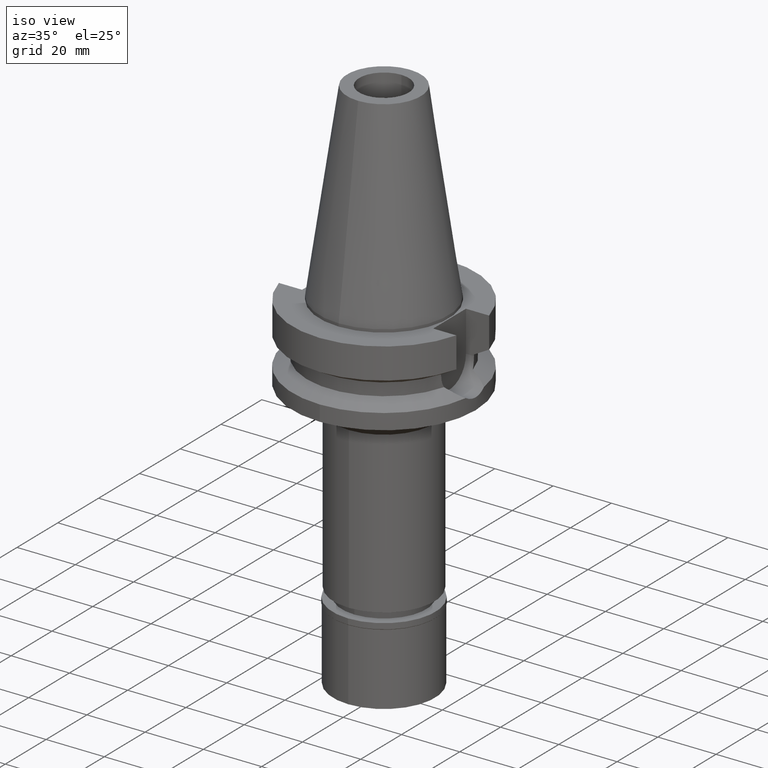
[diagram: clean part render]
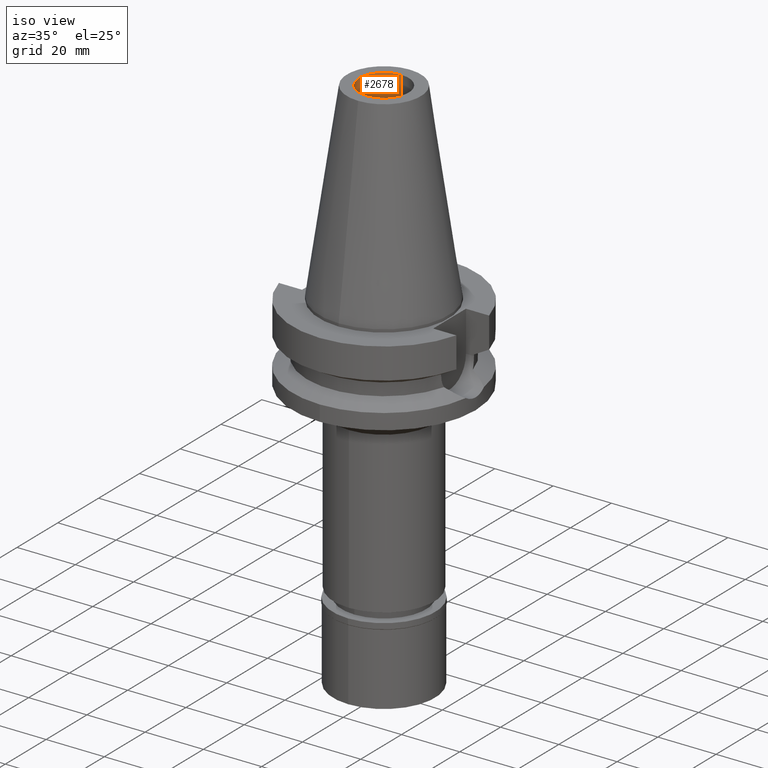
[diagram: same view with one face highlighted and labeled with its STEP entity id]
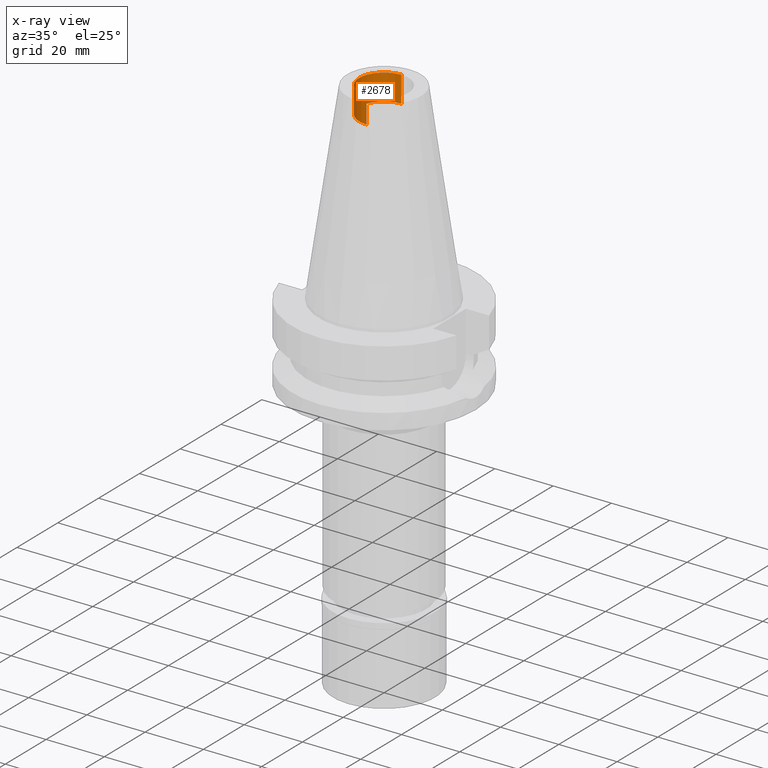
[diagram: x-ray of the same camera — body ghosted, the highlighted face saturated]
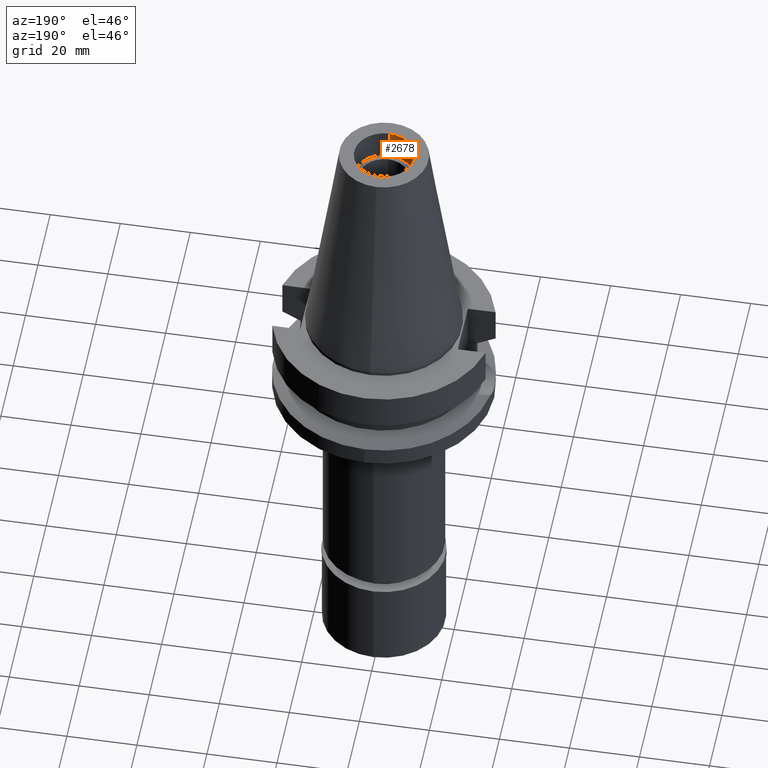
[diagram: same view with one face highlighted and labeled with its STEP entity id]
A machine part, iso view. The second image highlights one B-rep face of the part: STEP entity #2678.
The next image is the same camera in x-ray: the body ghosted, the highlighted face saturated — about 0% of this face is hidden behind the body in this view.
A second angle (auxiliary view) of the same face is appended — the face is thin or edge-on in the first view.
In plain terms, the highlighted cylindrical surface (edge-blend (fillet) strip) has radius 8.5 mm, axis along (0, 0, -1).
Its self-contained STEP definition (entity closure, byte-faithful):
#13 = LINE ( 'NONE', #48, #1391 ) ;
#41 = CARTESIAN_POINT ( 'NONE',  ( 0.0000000000000000000, 8.500000000000000000, 56.39999999999999858 ) ) ;
#48 = CARTESIAN_POINT ( 'NONE',  ( 0.0000000000000000000, -8.500000000000000000, 56.39999999999999858 ) ) ;
#224 = AXIS2_PLACEMENT_3D ( 'NONE', #1011, #1745, #1974 ) ;
#374 = ORIENTED_EDGE ( 'NONE', *, *, #2941, .F. ) ;
#450 = CARTESIAN_POINT ( 'NONE',  ( 0.0000000000000000000, 0.0000000000000000000, 0.0000000000000000000 ) ) ;
#547 = CIRCLE ( 'NONE', #224, 8.500000000000000000 ) ;
#648 = AXIS2_PLACEMENT_3D ( 'NONE', #450, #3098, #1380 ) ;
#654 = VERTEX_POINT ( 'NONE', #1613 ) ;
#974 = DIRECTION ( 'NONE',  ( 0.0000000000000000000, 0.0000000000000000000, 1.000000000000000000 ) ) ;
#1005 = DIRECTION ( 'NONE',  ( 0.0000000000000000000, 0.0000000000000000000, 1.000000000000000000 ) ) ;
#1011 = CARTESIAN_POINT ( 'NONE',  ( 0.0000000000000000000, 0.0000000000000000000, 65.40000000000000568 ) ) ;
#1063 = EDGE_CURVE ( 'NONE', #1294, #654, #2725, .T. ) ;
#1102 = CARTESIAN_POINT ( 'NONE',  ( 0.0000000000000000000, 8.500000000000000000, 56.39999999999999858 ) ) ;
#1120 = CIRCLE ( 'NONE', #3036, 8.500000000000000000 ) ;
#1154 = VERTEX_POINT ( 'NONE', #2302 ) ;
#1294 = VERTEX_POINT ( 'NONE', #1102 ) ;
#1303 = EDGE_CURVE ( 'NONE', #1154, #1294, #1120, .T. ) ;
#1304 = VERTEX_POINT ( 'NONE', #2021 ) ;
#1380 = DIRECTION ( 'NONE',  ( 0.0000000000000000000, -1.000000000000000000, 0.0000000000000000000 ) ) ;
#1391 = VECTOR ( 'NONE', #974, 1000.000000000000000 ) ;
#1604 = DIRECTION ( 'NONE',  ( 0.0000000000000000000, -1.000000000000000000, 0.0000000000000000000 ) ) ;
#1613 = CARTESIAN_POINT ( 'NONE',  ( 0.0000000000000000000, 8.500000000000000000, 65.40000000000000568 ) ) ;
#1745 = DIRECTION ( 'NONE',  ( 0.0000000000000000000, 0.0000000000000000000, 1.000000000000000000 ) ) ;
#1793 = CARTESIAN_POINT ( 'NONE',  ( 0.0000000000000000000, 0.0000000000000000000, 56.39999999999999858 ) ) ;
#1860 = ORIENTED_EDGE ( 'NONE', *, *, #3037, .T. ) ;
#1974 = DIRECTION ( 'NONE',  ( 0.0000000000000000000, 1.000000000000000000, 0.0000000000000000000 ) ) ;
#2021 = CARTESIAN_POINT ( 'NONE',  ( 0.0000000000000000000, -8.500000000000000000, 65.40000000000000568 ) ) ;
#2064 = DIRECTION ( 'NONE',  ( 0.0000000000000000000, 0.0000000000000000000, -1.000000000000000000 ) ) ;
#2136 = FACE_OUTER_BOUND ( 'NONE', #2682, .T. ) ;
#2271 = ORIENTED_EDGE ( 'NONE', *, *, #1063, .T. ) ;
#2302 = CARTESIAN_POINT ( 'NONE',  ( 0.0000000000000000000, -8.500000000000000000, 56.39999999999999858 ) ) ;
#2369 = VECTOR ( 'NONE', #1005, 1000.000000000000000 ) ;
#2594 = CYLINDRICAL_SURFACE ( 'NONE', #648, 8.500000000000000000 ) ;
#2678 = ADVANCED_FACE ( 'NONE', ( #2136 ), #2594, .F. ) ;
#2682 = EDGE_LOOP ( 'NONE', ( #1860, #374, #2699, #2271 ) ) ;
#2699 = ORIENTED_EDGE ( 'NONE', *, *, #1303, .T. ) ;
#2725 = LINE ( 'NONE', #41, #2369 ) ;
#2941 = EDGE_CURVE ( 'NONE', #1154, #1304, #13, .T. ) ;
#3036 = AXIS2_PLACEMENT_3D ( 'NONE', #1793, #2064, #1604 ) ;
#3037 = EDGE_CURVE ( 'NONE', #654, #1304, #547, .T. ) ;
#3098 = DIRECTION ( 'NONE',  ( 0.0000000000000000000, 0.0000000000000000000, -1.000000000000000000 ) ) ;